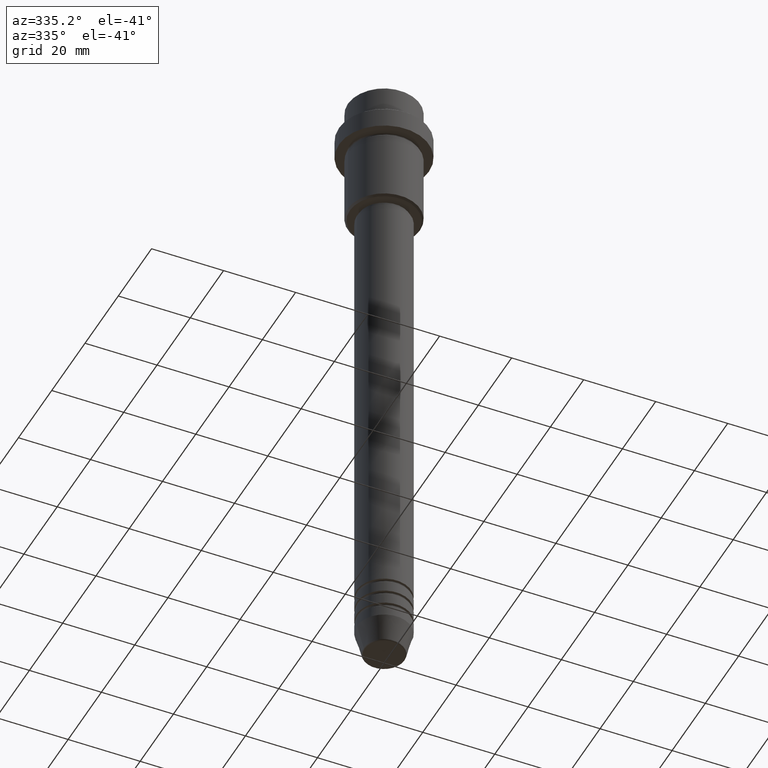
[diagram: clean part render]
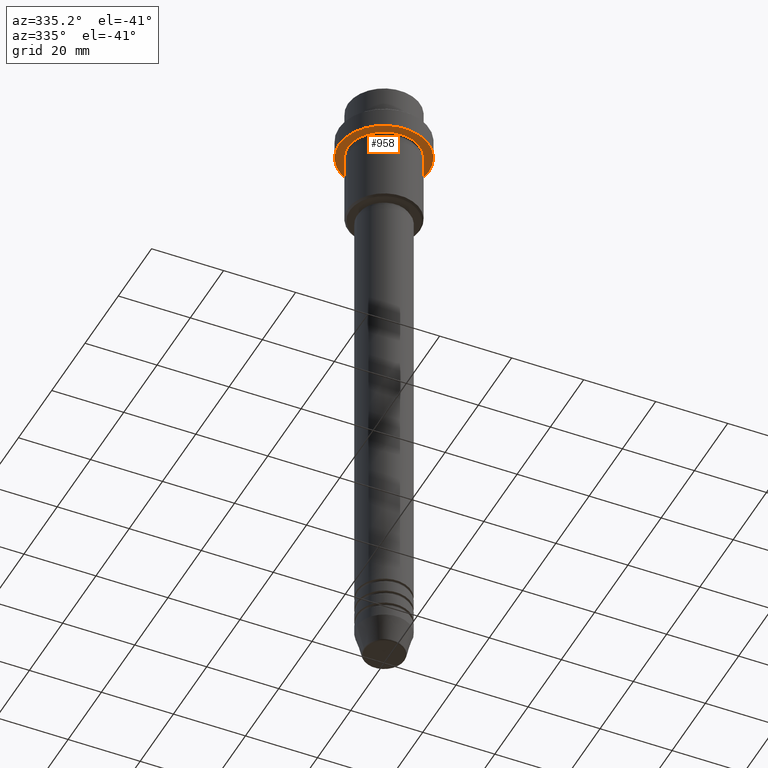
[diagram: same view with one face highlighted and labeled with its STEP entity id]
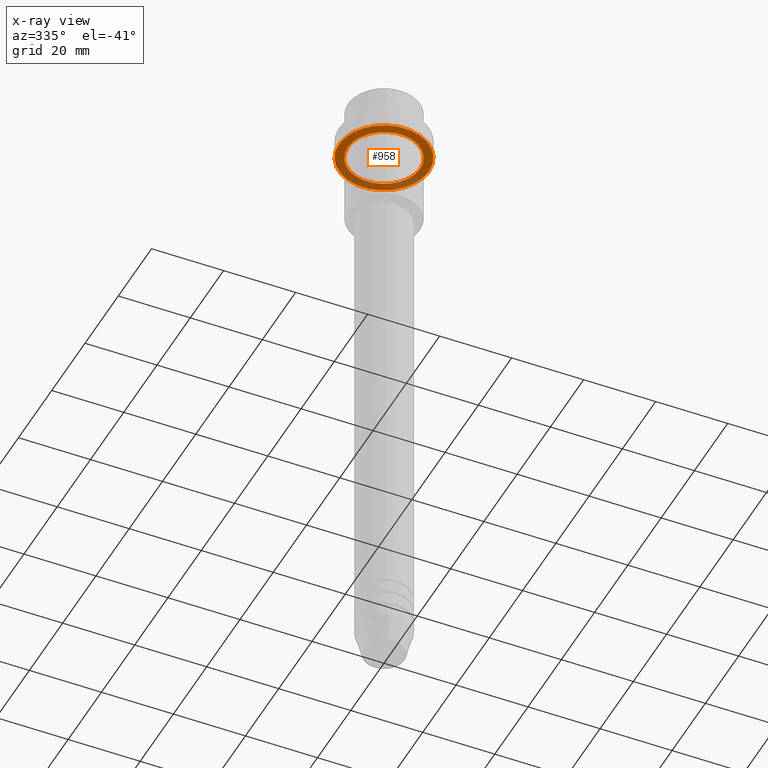
[diagram: x-ray of the same camera — body ghosted, the highlighted face saturated]
A machine part, auxiliary view. The second image highlights one B-rep face of the part: STEP entity #958.
The next image is the same camera in x-ray: the body ghosted, the highlighted face saturated — about 26% of this face is hidden behind the body in this view.
In plain terms, the highlighted planar face has unit normal (0, 0, -1).
Its self-contained STEP definition (entity closure, byte-faithful):
#59 = DIRECTION ( 'NONE',  ( 1.000000000000000000, 0.000000000000000000, 0.000000000000000000 ) ) ;
#78 = DIRECTION ( 'NONE',  ( -0.000000000000000000, -0.000000000000000000, 1.000000000000000000 ) ) ;
#186 = ORIENTED_EDGE ( 'NONE', *, *, #1219, .F. ) ;
#198 = ORIENTED_EDGE ( 'NONE', *, *, #409, .T. ) ;
#202 = CARTESIAN_POINT ( 'NONE',  ( 0.000000000000000000, 0.000000000000000000, -15.00000000000000000 ) ) ;
#214 = CARTESIAN_POINT ( 'NONE',  ( 12.50000000000000000, 0.000000000000000000, -15.00000000000000000 ) ) ;
#224 = EDGE_CURVE ( 'NONE', #1067, #1044, #589, .T. ) ;
#238 = DIRECTION ( 'NONE',  ( 0.000000000000000000, 0.000000000000000000, -1.000000000000000000 ) ) ;
#327 = EDGE_CURVE ( 'NONE', #990, #482, #1120, .T. ) ;
#331 = CARTESIAN_POINT ( 'NONE',  ( -12.50000000000000000, 1.530808498934191521E-15, -15.00000000000000000 ) ) ;
#340 = CARTESIAN_POINT ( 'NONE',  ( 0.000000000000000000, 12.50000000000000000, -15.00000000000000000 ) ) ;
#374 = AXIS2_PLACEMENT_3D ( 'NONE', #340, #238, #776 ) ;
#387 = CARTESIAN_POINT ( 'NONE',  ( -9.999999999999992895, 0.000000000000000000, -15.00000000000000000 ) ) ;
#409 = EDGE_CURVE ( 'NONE', #1044, #1067, #1343, .T. ) ;
#412 = AXIS2_PLACEMENT_3D ( 'NONE', #623, #1161, #841 ) ;
#477 = AXIS2_PLACEMENT_3D ( 'NONE', #697, #1131, #1136 ) ;
#482 = VERTEX_POINT ( 'NONE', #331 ) ;
#544 = FACE_BOUND ( 'NONE', #918, .T. ) ;
#552 = PLANE ( 'NONE',  #374 ) ;
#589 = CIRCLE ( 'NONE', #477, 9.999999999999992895 ) ;
#607 = ORIENTED_EDGE ( 'NONE', *, *, #224, .T. ) ;
#623 = CARTESIAN_POINT ( 'NONE',  ( 0.000000000000000000, 0.000000000000000000, -15.00000000000000000 ) ) ;
#634 = DIRECTION ( 'NONE',  ( -0.000000000000000000, -0.000000000000000000, 1.000000000000000000 ) ) ;
#690 = AXIS2_PLACEMENT_3D ( 'NONE', #202, #634, #59 ) ;
#694 = CARTESIAN_POINT ( 'NONE',  ( 9.999999999999992895, 1.224646799147352468E-15, -15.00000000000000000 ) ) ;
#697 = CARTESIAN_POINT ( 'NONE',  ( 0.000000000000000000, 0.000000000000000000, -15.00000000000000000 ) ) ;
#745 = CARTESIAN_POINT ( 'NONE',  ( 0.000000000000000000, 0.000000000000000000, -15.00000000000000000 ) ) ;
#776 = DIRECTION ( 'NONE',  ( -1.000000000000000000, 0.000000000000000000, -0.000000000000000000 ) ) ;
#780 = CIRCLE ( 'NONE', #690, 12.50000000000000000 ) ;
#841 = DIRECTION ( 'NONE',  ( -1.000000000000000000, 0.000000000000000000, 0.000000000000000000 ) ) ;
#918 = EDGE_LOOP ( 'NONE', ( #607, #198 ) ) ;
#958 = ADVANCED_FACE ( 'NONE', ( #544, #1006 ), #552, .T. ) ;
#990 = VERTEX_POINT ( 'NONE', #214 ) ;
#1006 = FACE_OUTER_BOUND ( 'NONE', #1274, .T. ) ;
#1044 = VERTEX_POINT ( 'NONE', #694 ) ;
#1047 = ORIENTED_EDGE ( 'NONE', *, *, #327, .F. ) ;
#1067 = VERTEX_POINT ( 'NONE', #387 ) ;
#1120 = CIRCLE ( 'NONE', #1253, 12.50000000000000000 ) ;
#1131 = DIRECTION ( 'NONE',  ( -0.000000000000000000, -0.000000000000000000, 1.000000000000000000 ) ) ;
#1136 = DIRECTION ( 'NONE',  ( -1.000000000000000000, 0.000000000000000000, 0.000000000000000000 ) ) ;
#1161 = DIRECTION ( 'NONE',  ( -0.000000000000000000, -0.000000000000000000, 1.000000000000000000 ) ) ;
#1219 = EDGE_CURVE ( 'NONE', #482, #990, #780, .T. ) ;
#1253 = AXIS2_PLACEMENT_3D ( 'NONE', #745, #78, #1272 ) ;
#1272 = DIRECTION ( 'NONE',  ( 1.000000000000000000, 0.000000000000000000, 0.000000000000000000 ) ) ;
#1274 = EDGE_LOOP ( 'NONE', ( #1047, #186 ) ) ;
#1343 = CIRCLE ( 'NONE', #412, 9.999999999999992895 ) ;